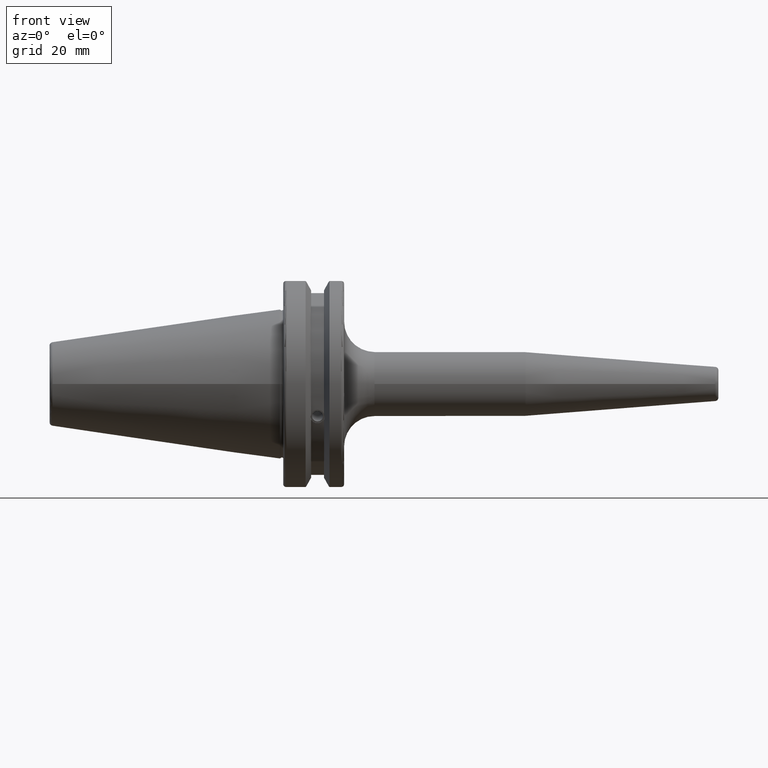
[diagram: clean part render]
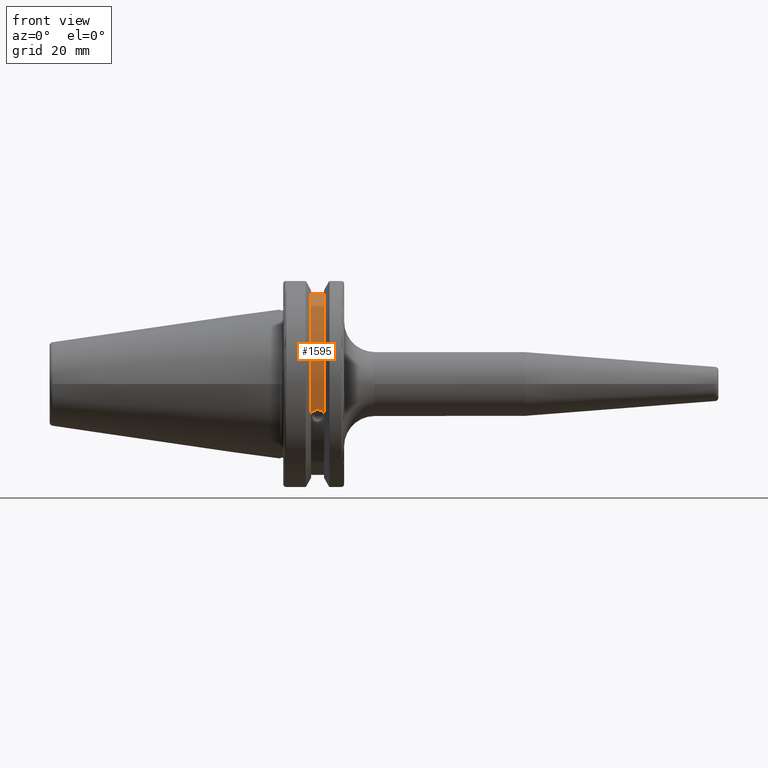
[diagram: same view with one face highlighted and labeled with its STEP entity id]
A machine part, front view. The second image highlights one B-rep face of the part: STEP entity #1595.
In plain terms, the highlighted cylindrical surface (partial cylindrical patch) has radius 28.15 mm, axis along (1, 0, 0).
Its self-contained STEP definition (entity closure, byte-faithful):
#56=B_SPLINE_CURVE_WITH_KNOTS('',3,(#2458,#2459,#2460,#2461,#2462,#2463,
#2464,#2465,#2466,#2467,#2468,#2469,#2470,#2471),.UNSPECIFIED.,.F.,.F.,
(4,2,2,2,2,2,4),(0.401639126382403,0.474814416953736,0.553950208498303,
0.63308600004287,0.712221791587437,0.791357583132004,0.864532873703336),
 .UNSPECIFIED.);
#152=LINE('',#2840,#248);
#248=VECTOR('',#2082,10.);
#314=CYLINDRICAL_SURFACE('',#1798,28.15);
#450=FACE_OUTER_BOUND('',#551,.T.);
#551=EDGE_LOOP('',(#1488,#1489,#1490,#1491));
#629=CIRCLE('',#1797,28.15);
#630=CIRCLE('',#1799,28.15);
#674=VERTEX_POINT('',#2455);
#675=VERTEX_POINT('',#2457);
#746=VERTEX_POINT('',#2837);
#747=VERTEX_POINT('',#2839);
#845=EDGE_CURVE('',#675,#674,#56,.T.);
#944=EDGE_CURVE('',#747,#746,#152,.T.);
#1022=EDGE_CURVE('',#746,#675,#629,.T.);
#1023=EDGE_CURVE('',#747,#674,#630,.T.);
#1488=ORIENTED_EDGE('',*,*,#845,.T.);
#1489=ORIENTED_EDGE('',*,*,#1023,.F.);
#1490=ORIENTED_EDGE('',*,*,#944,.T.);
#1491=ORIENTED_EDGE('',*,*,#1022,.T.);
#1595=ADVANCED_FACE('',(#450),#314,.T.);
#1797=AXIS2_PLACEMENT_3D('',#3048,#2251,#2252);
#1798=AXIS2_PLACEMENT_3D('',#3049,#2253,#2254);
#1799=AXIS2_PLACEMENT_3D('',#3050,#2255,#2256);
#2082=DIRECTION('',(-1.,0.,0.));
#2251=DIRECTION('center_axis',(1.,0.,0.));
#2252=DIRECTION('ref_axis',(0.,0.,-1.));
#2253=DIRECTION('center_axis',(1.,0.,0.));
#2254=DIRECTION('ref_axis',(0.,-0.887654187951484,0.46051063246378));
#2255=DIRECTION('center_axis',(1.,0.,0.));
#2256=DIRECTION('ref_axis',(0.,0.,-1.));
#2455=CARTESIAN_POINT('',(13.091,-26.734714844398,-8.81348524641212));
#2457=CARTESIAN_POINT('',(9.261,-26.734714844398,-8.81348524641212));
#2458=CARTESIAN_POINT('Ctrl Pts',(9.261,-26.734714844398,-8.81348524641212));
#2459=CARTESIAN_POINT('Ctrl Pts',(9.36723057097183,-26.8086519721597,-8.58920529678291));
#2460=CARTESIAN_POINT('Ctrl Pts',(9.51872013770509,-26.8729987454904,-8.38416529997369));
#2461=CARTESIAN_POINT('Ctrl Pts',(9.87747062657411,-26.9778908791383,-8.04056861831091));
#2462=CARTESIAN_POINT('Ctrl Pts',(10.1135450112988,-27.0233016799732,-7.88512567185902));
#2463=CARTESIAN_POINT('Ctrl Pts',(10.6309125426388,-27.0826966800569,-7.6786444840004));
#2464=CARTESIAN_POINT('Ctrl Pts',(10.9122140281848,-27.0968804077294,-7.62768458768513));
#2465=CARTESIAN_POINT('Ctrl Pts',(11.4397859718152,-27.0968804077294,-7.62768458768513));
#2466=CARTESIAN_POINT('Ctrl Pts',(11.7210874573612,-27.0826966800569,-7.6786444840004));
#2467=CARTESIAN_POINT('Ctrl Pts',(12.2384549887012,-27.0233016799732,-7.88512567185903));
#2468=CARTESIAN_POINT('Ctrl Pts',(12.4745293734259,-26.9778908791383,-8.04056861831091));
#2469=CARTESIAN_POINT('Ctrl Pts',(12.8332798622949,-26.8729987454904,-8.3841652999737));
#2470=CARTESIAN_POINT('Ctrl Pts',(12.9847694290282,-26.8086519721597,-8.58920529678291));
#2471=CARTESIAN_POINT('Ctrl Pts',(13.091,-26.734714844398,-8.81348524641212));
#2837=CARTESIAN_POINT('',(9.261,-8.19,26.932255754021));
#2839=CARTESIAN_POINT('',(13.091,-8.19,26.932255754021));
#2840=CARTESIAN_POINT('',(11.176,-8.19,26.932255754021));
#3048=CARTESIAN_POINT('Origin',(9.261,0.,0.));
#3049=CARTESIAN_POINT('Origin',(11.176,0.,0.));
#3050=CARTESIAN_POINT('Origin',(13.091,0.,0.));